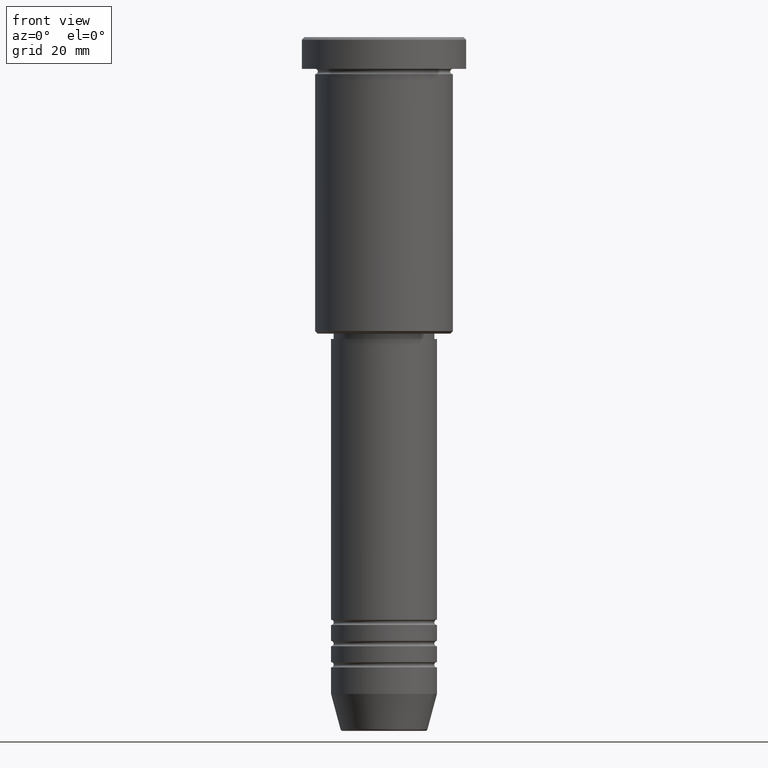
[diagram: clean part render]
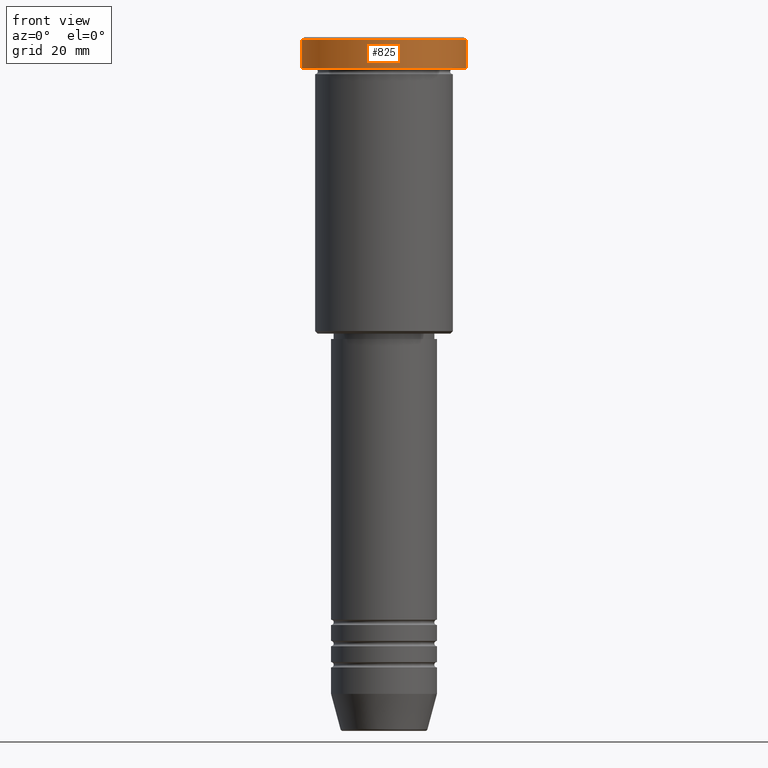
[diagram: same view with one face highlighted and labeled with its STEP entity id]
A machine part, front view. The second image highlights one B-rep face of the part: STEP entity #825.
In plain terms, the highlighted cylindrical surface (partial cylindrical patch) has radius 15.5 mm, axis along (-0, -0, 1).
Its self-contained STEP definition (entity closure, byte-faithful):
#12 = FACE_OUTER_BOUND ( 'NONE', #622, .T. ) ;
#45 = LINE ( 'NONE', #511, #497 ) ;
#48 = DIRECTION ( 'NONE',  ( 0.000000000000000000, 0.000000000000000000, -1.000000000000000000 ) ) ;
#52 = ORIENTED_EDGE ( 'NONE', *, *, #1024, .T. ) ;
#80 = VECTOR ( 'NONE', #174, 1000.000000000000000 ) ;
#91 = CARTESIAN_POINT ( 'NONE',  ( 0.000000000000000000, 0.000000000000000000, 0.000000000000000000 ) ) ;
#96 = CARTESIAN_POINT ( 'NONE',  ( 15.50000000000000000, 0.000000000000000000, 0.000000000000000000 ) ) ;
#174 = DIRECTION ( 'NONE',  ( -0.000000000000000000, -0.000000000000000000, 1.000000000000000000 ) ) ;
#223 = CIRCLE ( 'NONE', #894, 15.50000000000000000 ) ;
#230 = VERTEX_POINT ( 'NONE', #727 ) ;
#239 = DIRECTION ( 'NONE',  ( 1.000000000000000000, 0.000000000000000000, 0.000000000000000000 ) ) ;
#274 = CARTESIAN_POINT ( 'NONE',  ( 0.000000000000000000, 0.000000000000000000, -5.999999999999995559 ) ) ;
#281 = DIRECTION ( 'NONE',  ( -0.000000000000000000, -0.000000000000000000, 1.000000000000000000 ) ) ;
#307 = DIRECTION ( 'NONE',  ( 1.000000000000000000, 0.000000000000000000, 0.000000000000000000 ) ) ;
#313 = ORIENTED_EDGE ( 'NONE', *, *, #914, .F. ) ;
#391 = VERTEX_POINT ( 'NONE', #1136 ) ;
#424 = DIRECTION ( 'NONE',  ( -0.000000000000000000, -0.000000000000000000, 1.000000000000000000 ) ) ;
#497 = VECTOR ( 'NONE', #424, 1000.000000000000000 ) ;
#511 = CARTESIAN_POINT ( 'NONE',  ( -15.50000000000000000, 1.898202538678397557E-15, 0.000000000000000000 ) ) ;
#520 = CARTESIAN_POINT ( 'NONE',  ( 0.000000000000000000, 0.000000000000000000, -0.4999999999999709677 ) ) ;
#587 = AXIS2_PLACEMENT_3D ( 'NONE', #520, #48, #239 ) ;
#613 = CARTESIAN_POINT ( 'NONE',  ( -15.50000000000000000, 1.898202538678397557E-15, -5.999999999999995559 ) ) ;
#622 = EDGE_LOOP ( 'NONE', ( #313, #1073, #52, #1091 ) ) ;
#630 = DIRECTION ( 'NONE',  ( -0.000000000000000000, -0.000000000000000000, 1.000000000000000000 ) ) ;
#634 = VERTEX_POINT ( 'NONE', #917 ) ;
#727 = CARTESIAN_POINT ( 'NONE',  ( 15.50000000000000000, 0.000000000000000000, -0.4999999999999709677 ) ) ;
#729 = VERTEX_POINT ( 'NONE', #613 ) ;
#825 = ADVANCED_FACE ( 'NONE', ( #12 ), #1021, .T. ) ;
#894 = AXIS2_PLACEMENT_3D ( 'NONE', #274, #630, #1094 ) ;
#914 = EDGE_CURVE ( 'NONE', #729, #391, #45, .T. ) ;
#917 = CARTESIAN_POINT ( 'NONE',  ( 15.50000000000000000, 0.000000000000000000, -5.999999999999995559 ) ) ;
#960 = EDGE_CURVE ( 'NONE', #230, #391, #1093, .T. ) ;
#982 = LINE ( 'NONE', #96, #80 ) ;
#1020 = EDGE_CURVE ( 'NONE', #729, #634, #223, .T. ) ;
#1021 = CYLINDRICAL_SURFACE ( 'NONE', #1164, 15.50000000000000000 ) ;
#1024 = EDGE_CURVE ( 'NONE', #634, #230, #982, .T. ) ;
#1073 = ORIENTED_EDGE ( 'NONE', *, *, #1020, .T. ) ;
#1091 = ORIENTED_EDGE ( 'NONE', *, *, #960, .T. ) ;
#1093 = CIRCLE ( 'NONE', #587, 15.50000000000000000 ) ;
#1094 = DIRECTION ( 'NONE',  ( 1.000000000000000000, 0.000000000000000000, 0.000000000000000000 ) ) ;
#1136 = CARTESIAN_POINT ( 'NONE',  ( -15.50000000000000000, 1.898202538678397557E-15, -0.4999999999999709677 ) ) ;
#1164 = AXIS2_PLACEMENT_3D ( 'NONE', #91, #281, #307 ) ;